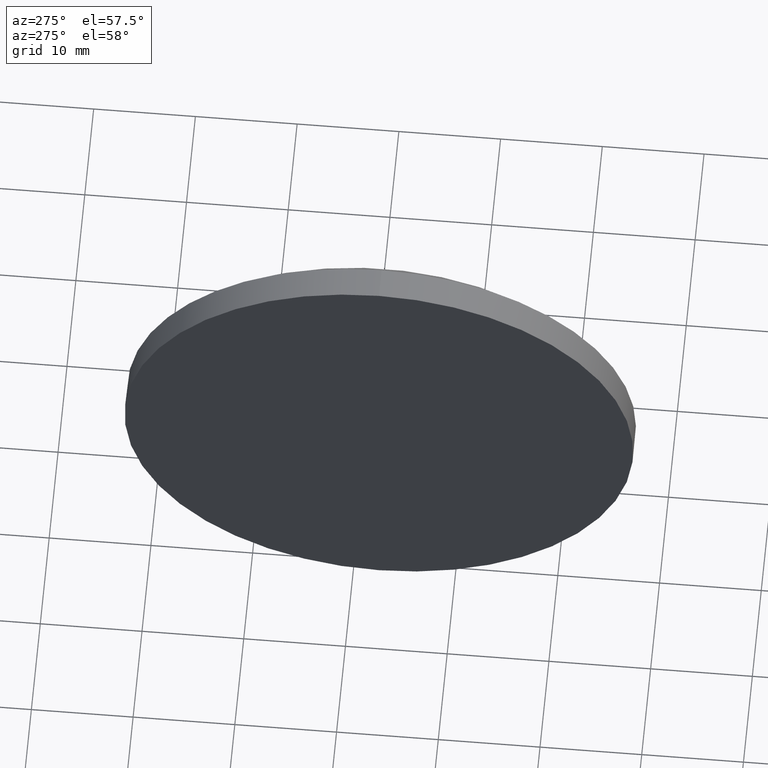
[diagram: clean part render]
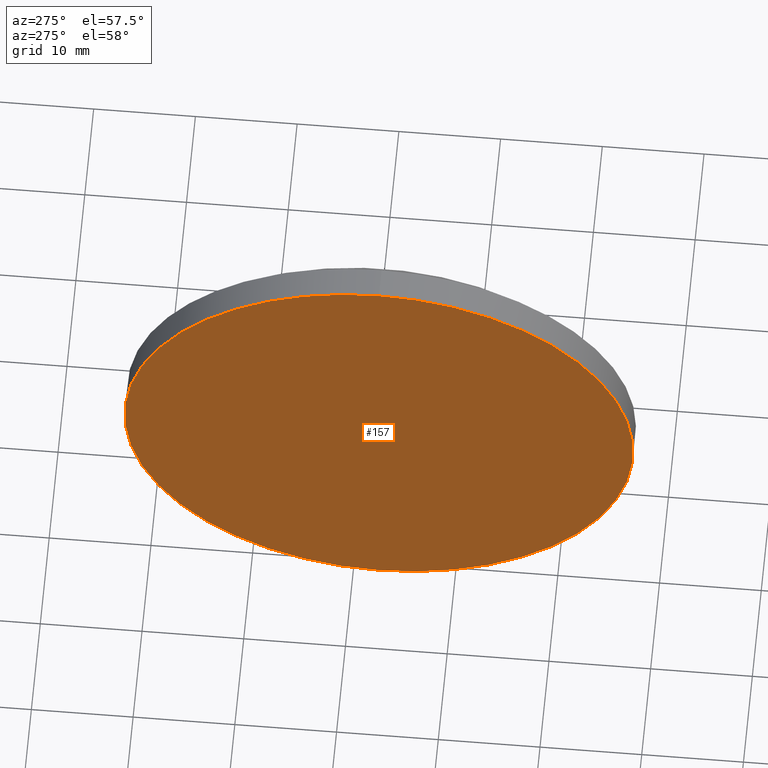
[diagram: same view with one face highlighted and labeled with its STEP entity id]
A machine part, auxiliary view. The second image highlights one B-rep face of the part: STEP entity #157.
In plain terms, the highlighted planar face has unit normal (1, 0, 0).
Its self-contained STEP definition (entity closure, byte-faithful):
#21 = ORIENTED_EDGE ( 'NONE', *, *, #56, .T. ) ;
#30 = CARTESIAN_POINT ( 'NONE',  ( 448.4029690565171200, 47.44710200765325700, 24.99999999999999300 ) ) ;
#35 = FACE_OUTER_BOUND ( 'NONE', #138, .T. ) ;
#40 = AXIS2_PLACEMENT_3D ( 'NONE', #120, #144, #180 ) ;
#43 = CARTESIAN_POINT ( 'NONE',  ( 448.4029690565171200, 47.44710200765325700, 0.0000000000000000000 ) ) ;
#44 = DIRECTION ( 'NONE',  ( 0.0000000000000000000, 0.0000000000000000000, 1.000000000000000000 ) ) ;
#45 = CIRCLE ( 'NONE', #51, 24.99999999999999300 ) ;
#51 = AXIS2_PLACEMENT_3D ( 'NONE', #43, #145, #44 ) ;
#56 = EDGE_CURVE ( 'NONE', #178, #65, #45, .T. ) ;
#57 = DIRECTION ( 'NONE',  ( 0.0000000000000000000, 0.0000000000000000000, -1.000000000000000000 ) ) ;
#59 = EDGE_CURVE ( 'NONE', #65, #178, #93, .T. ) ;
#63 = ORIENTED_EDGE ( 'NONE', *, *, #59, .T. ) ;
#65 = VERTEX_POINT ( 'NONE', #109 ) ;
#83 = DIRECTION ( 'NONE',  ( 1.000000000000000000, 0.0000000000000000000, 0.0000000000000000000 ) ) ;
#93 = CIRCLE ( 'NONE', #40, 24.99999999999999300 ) ;
#105 = PLANE ( 'NONE',  #146 ) ;
#109 = CARTESIAN_POINT ( 'NONE',  ( 448.4029690565171200, 47.44710200765325700, -24.99999999999999300 ) ) ;
#120 = CARTESIAN_POINT ( 'NONE',  ( 448.4029690565171200, 47.44710200765325700, 0.0000000000000000000 ) ) ;
#138 = EDGE_LOOP ( 'NONE', ( #21, #63 ) ) ;
#144 = DIRECTION ( 'NONE',  ( -1.000000000000000000, -0.0000000000000000000, -0.0000000000000000000 ) ) ;
#145 = DIRECTION ( 'NONE',  ( -1.000000000000000000, -0.0000000000000000000, -0.0000000000000000000 ) ) ;
#146 = AXIS2_PLACEMENT_3D ( 'NONE', #169, #83, #57 ) ;
#157 = ADVANCED_FACE ( 'NONE', ( #35 ), #105, .F. ) ;
#169 = CARTESIAN_POINT ( 'NONE',  ( 448.4029690565171200, 47.44710200765325700, 0.0000000000000000000 ) ) ;
#178 = VERTEX_POINT ( 'NONE', #30 ) ;
#180 = DIRECTION ( 'NONE',  ( 0.0000000000000000000, 0.0000000000000000000, 1.000000000000000000 ) ) ;